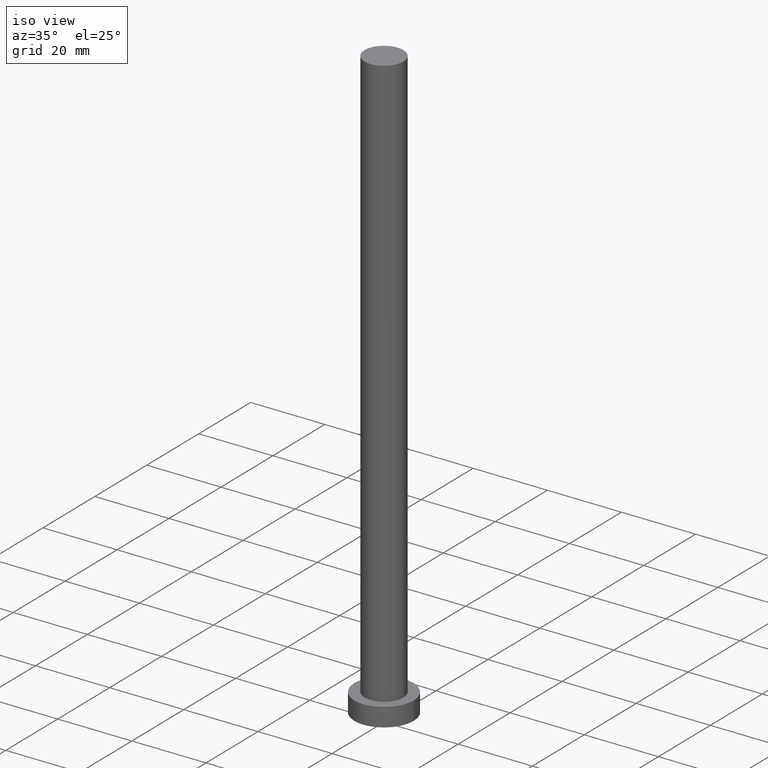
[diagram: clean part render]
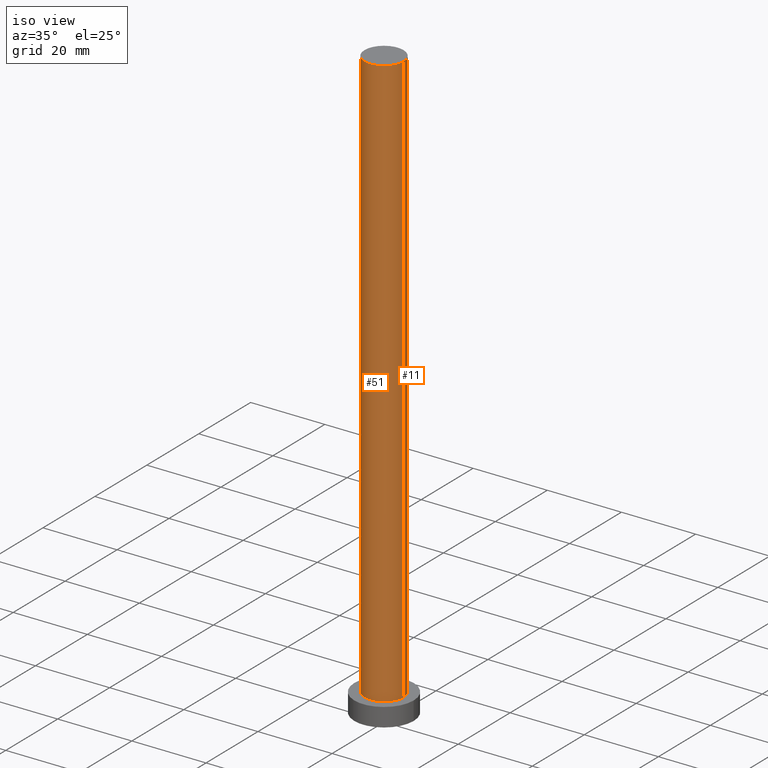
[diagram: same view with one multi-face feature highlighted, each face labeled with its STEP entity id]
A machine part, iso view. The highlighted faces form ONE feature: a constant-radius fillet chain: 2 tangent blend faces with common blend radius 5.25 mm. The faces share edges in the B-rep.
Their STEP definitions:
[1] entity #51 (Cylinder):
#9 = EDGE_CURVE ( 'NONE', #137, #64, #108, .T. ) ;
#14 = CIRCLE ( 'NONE', #157, 5.250000000000000000 ) ;
#15 = DIRECTION ( 'NONE',  ( 0.000000000000000000, 0.000000000000000000, 1.000000000000000000 ) ) ;
#19 = ORIENTED_EDGE ( 'NONE', *, *, #151, .F. ) ;
#23 = DIRECTION ( 'NONE',  ( -0.000000000000000000, -0.000000000000000000, -1.000000000000000000 ) ) ;
#28 = LINE ( 'NONE', #45, #59 ) ;
#31 = ORIENTED_EDGE ( 'NONE', *, *, #9, .F. ) ;
#32 = DIRECTION ( 'NONE',  ( 0.000000000000000000, 0.000000000000000000, 1.000000000000000000 ) ) ;
#33 = DIRECTION ( 'NONE',  ( 1.000000000000000000, 0.000000000000000000, 0.000000000000000000 ) ) ;
#41 = CIRCLE ( 'NONE', #148, 5.250000000000000000 ) ;
#45 = CARTESIAN_POINT ( 'NONE',  ( -5.250000000000000000, 0.000000000000000000, 160.0000000000000000 ) ) ;
#47 = ORIENTED_EDGE ( 'NONE', *, *, #72, .T. ) ;
#51 = ADVANCED_FACE ( 'NONE', ( #186 ), #93, .T. ) ;
#54 = DIRECTION ( 'NONE',  ( -0.000000000000000000, -0.000000000000000000, -1.000000000000000000 ) ) ;
#59 = VECTOR ( 'NONE', #82, 1000.000000000000000 ) ;
#64 = VERTEX_POINT ( 'NONE', #163 ) ;
#69 = CARTESIAN_POINT ( 'NONE',  ( 5.250000000000000000, 6.429395695523604153E-16, 160.0000000000000000 ) ) ;
#72 = EDGE_CURVE ( 'NONE', #129, #160, #28, .T. ) ;
#82 = DIRECTION ( 'NONE',  ( -0.000000000000000000, -0.000000000000000000, -1.000000000000000000 ) ) ;
#93 = CYLINDRICAL_SURFACE ( 'NONE', #241, 5.250000000000000000 ) ;
#108 = LINE ( 'NONE', #69, #247 ) ;
#109 = CARTESIAN_POINT ( 'NONE',  ( 0.000000000000000000, 0.000000000000000000, 160.0000000000000000 ) ) ;
#125 = EDGE_LOOP ( 'NONE', ( #31, #19, #47, #237 ) ) ;
#129 = VERTEX_POINT ( 'NONE', #210 ) ;
#137 = VERTEX_POINT ( 'NONE', #167 ) ;
#148 = AXIS2_PLACEMENT_3D ( 'NONE', #192, #15, #33 ) ;
#151 = EDGE_CURVE ( 'NONE', #129, #137, #14, .T. ) ;
#154 = CARTESIAN_POINT ( 'NONE',  ( 0.000000000000000000, 0.000000000000000000, 160.0000000000000000 ) ) ;
#157 = AXIS2_PLACEMENT_3D ( 'NONE', #109, #32, #182 ) ;
#160 = VERTEX_POINT ( 'NONE', #166 ) ;
#163 = CARTESIAN_POINT ( 'NONE',  ( 5.250000000000000000, 6.429395695523604153E-16, 5.000000000000000000 ) ) ;
#166 = CARTESIAN_POINT ( 'NONE',  ( -5.250000000000000000, 0.000000000000000000, 5.000000000000000000 ) ) ;
#167 = CARTESIAN_POINT ( 'NONE',  ( 5.250000000000000000, 6.429395695523604153E-16, 160.0000000000000000 ) ) ;
#182 = DIRECTION ( 'NONE',  ( 1.000000000000000000, 0.000000000000000000, 0.000000000000000000 ) ) ;
#186 = FACE_OUTER_BOUND ( 'NONE', #125, .T. ) ;
#189 = DIRECTION ( 'NONE',  ( -1.000000000000000000, 0.000000000000000000, 0.000000000000000000 ) ) ;
#192 = CARTESIAN_POINT ( 'NONE',  ( 0.000000000000000000, 0.000000000000000000, 5.000000000000000000 ) ) ;
#210 = CARTESIAN_POINT ( 'NONE',  ( -5.250000000000000000, 0.000000000000000000, 160.0000000000000000 ) ) ;
#232 = EDGE_CURVE ( 'NONE', #160, #64, #41, .T. ) ;
#237 = ORIENTED_EDGE ( 'NONE', *, *, #232, .T. ) ;
#241 = AXIS2_PLACEMENT_3D ( 'NONE', #154, #54, #189 ) ;
#247 = VECTOR ( 'NONE', #23, 1000.000000000000000 ) ;
[2] entity #11 (Cylinder):
#3 = CARTESIAN_POINT ( 'NONE',  ( 0.000000000000000000, 0.000000000000000000, 160.0000000000000000 ) ) ;
#9 = EDGE_CURVE ( 'NONE', #137, #64, #108, .T. ) ;
#11 = ADVANCED_FACE ( 'NONE', ( #240 ), #126, .T. ) ;
#22 = CIRCLE ( 'NONE', #98, 5.250000000000000000 ) ;
#23 = DIRECTION ( 'NONE',  ( -0.000000000000000000, -0.000000000000000000, -1.000000000000000000 ) ) ;
#28 = LINE ( 'NONE', #45, #59 ) ;
#36 = AXIS2_PLACEMENT_3D ( 'NONE', #170, #250, #209 ) ;
#45 = CARTESIAN_POINT ( 'NONE',  ( -5.250000000000000000, 0.000000000000000000, 160.0000000000000000 ) ) ;
#58 = EDGE_CURVE ( 'NONE', #137, #129, #22, .T. ) ;
#59 = VECTOR ( 'NONE', #82, 1000.000000000000000 ) ;
#64 = VERTEX_POINT ( 'NONE', #163 ) ;
#69 = CARTESIAN_POINT ( 'NONE',  ( 5.250000000000000000, 6.429395695523604153E-16, 160.0000000000000000 ) ) ;
#72 = EDGE_CURVE ( 'NONE', #129, #160, #28, .T. ) ;
#79 = CIRCLE ( 'NONE', #36, 5.250000000000000000 ) ;
#82 = DIRECTION ( 'NONE',  ( -0.000000000000000000, -0.000000000000000000, -1.000000000000000000 ) ) ;
#86 = ORIENTED_EDGE ( 'NONE', *, *, #225, .T. ) ;
#98 = AXIS2_PLACEMENT_3D ( 'NONE', #158, #174, #197 ) ;
#101 = ORIENTED_EDGE ( 'NONE', *, *, #72, .F. ) ;
#108 = LINE ( 'NONE', #69, #247 ) ;
#115 = AXIS2_PLACEMENT_3D ( 'NONE', #3, #218, #145 ) ;
#126 = CYLINDRICAL_SURFACE ( 'NONE', #115, 5.250000000000000000 ) ;
#129 = VERTEX_POINT ( 'NONE', #210 ) ;
#137 = VERTEX_POINT ( 'NONE', #167 ) ;
#145 = DIRECTION ( 'NONE',  ( -1.000000000000000000, 0.000000000000000000, 0.000000000000000000 ) ) ;
#146 = ORIENTED_EDGE ( 'NONE', *, *, #9, .T. ) ;
#158 = CARTESIAN_POINT ( 'NONE',  ( 0.000000000000000000, 0.000000000000000000, 160.0000000000000000 ) ) ;
#160 = VERTEX_POINT ( 'NONE', #166 ) ;
#163 = CARTESIAN_POINT ( 'NONE',  ( 5.250000000000000000, 6.429395695523604153E-16, 5.000000000000000000 ) ) ;
#166 = CARTESIAN_POINT ( 'NONE',  ( -5.250000000000000000, 0.000000000000000000, 5.000000000000000000 ) ) ;
#167 = CARTESIAN_POINT ( 'NONE',  ( 5.250000000000000000, 6.429395695523604153E-16, 160.0000000000000000 ) ) ;
#170 = CARTESIAN_POINT ( 'NONE',  ( 0.000000000000000000, 0.000000000000000000, 5.000000000000000000 ) ) ;
#174 = DIRECTION ( 'NONE',  ( 0.000000000000000000, 0.000000000000000000, 1.000000000000000000 ) ) ;
#197 = DIRECTION ( 'NONE',  ( 1.000000000000000000, 0.000000000000000000, 0.000000000000000000 ) ) ;
#207 = EDGE_LOOP ( 'NONE', ( #228, #146, #86, #101 ) ) ;
#209 = DIRECTION ( 'NONE',  ( 1.000000000000000000, 0.000000000000000000, 0.000000000000000000 ) ) ;
#210 = CARTESIAN_POINT ( 'NONE',  ( -5.250000000000000000, 0.000000000000000000, 160.0000000000000000 ) ) ;
#218 = DIRECTION ( 'NONE',  ( -0.000000000000000000, -0.000000000000000000, -1.000000000000000000 ) ) ;
#225 = EDGE_CURVE ( 'NONE', #64, #160, #79, .T. ) ;
#228 = ORIENTED_EDGE ( 'NONE', *, *, #58, .F. ) ;
#240 = FACE_OUTER_BOUND ( 'NONE', #207, .T. ) ;
#247 = VECTOR ( 'NONE', #23, 1000.000000000000000 ) ;
#250 = DIRECTION ( 'NONE',  ( 0.000000000000000000, 0.000000000000000000, 1.000000000000000000 ) ) ;